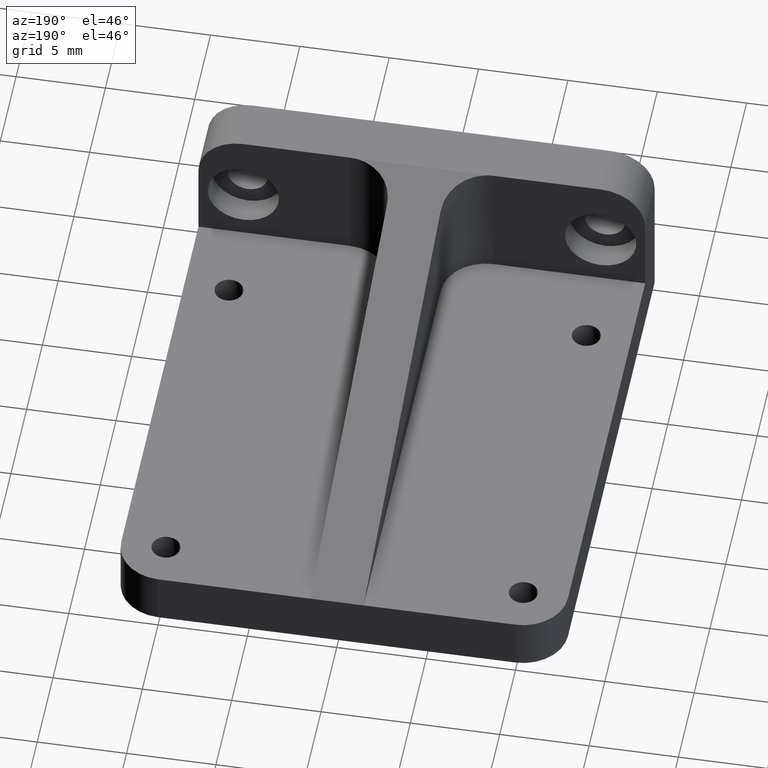
[diagram: clean part render]
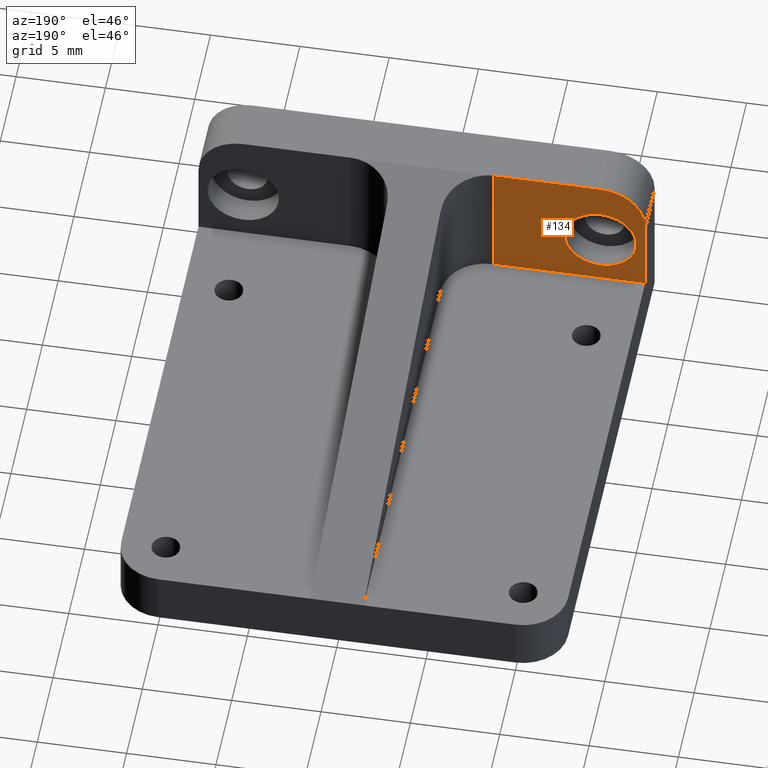
[diagram: same view with one face highlighted and labeled with its STEP entity id]
A machine part, auxiliary view. The second image highlights one B-rep face of the part: STEP entity #134.
In plain terms, the highlighted planar face has unit normal (0, -1, 0).
Its self-contained STEP definition (entity closure, byte-faithful):
#5 = DIRECTION ( 'NONE',  ( 6.938893903907227392E-16, 0.0000000000000000000, -1.000000000000000000 ) ) ;
#30 = CARTESIAN_POINT ( 'NONE',  ( -12.50000000000000000, 3.000000000000000000, -29.15475947422650904 ) ) ;
#34 = CARTESIAN_POINT ( 'NONE',  ( -12.50000000000000000, 3.000000000000000000, 7.500000000000000000 ) ) ;
#56 = LINE ( 'NONE', #650, #1044 ) ;
#86 = ORIENTED_EDGE ( 'NONE', *, *, #197, .T. ) ;
#89 = CARTESIAN_POINT ( 'NONE',  ( -9.999999999999998224, 3.000000000000000000, 7.500000000000000000 ) ) ;
#122 = EDGE_CURVE ( 'NONE', #812, #246, #369, .T. ) ;
#128 = VERTEX_POINT ( 'NONE', #1005 ) ;
#134 = ADVANCED_FACE ( 'NONE', ( #362, #235 ), #746, .F. ) ;
#137 = CARTESIAN_POINT ( 'NONE',  ( -10.00000000000000000, 3.000000000000000888, 4.000000000000000000 ) ) ;
#165 = ORIENTED_EDGE ( 'NONE', *, *, #940, .T. ) ;
#167 = AXIS2_PLACEMENT_3D ( 'NONE', #89, #938, #5 ) ;
#179 = VECTOR ( 'NONE', #417, 1000.000000000000000 ) ;
#184 = EDGE_CURVE ( 'NONE', #614, #694, #56, .T. ) ;
#197 = EDGE_CURVE ( 'NONE', #694, #128, #340, .T. ) ;
#235 = FACE_OUTER_BOUND ( 'NONE', #1074, .T. ) ;
#240 = VECTOR ( 'NONE', #857, 1000.000000000000000 ) ;
#246 = VERTEX_POINT ( 'NONE', #627 ) ;
#258 = CARTESIAN_POINT ( 'NONE',  ( -12.50000000000000000, 3.000000000000000000, -29.15475947422650904 ) ) ;
#302 = VECTOR ( 'NONE', #1224, 1000.000000000000000 ) ;
#309 = LINE ( 'NONE', #30, #179 ) ;
#326 = CIRCLE ( 'NONE', #1197, 2.000000000000000000 ) ;
#340 = LINE ( 'NONE', #725, #302 ) ;
#351 = VERTEX_POINT ( 'NONE', #34 ) ;
#362 = FACE_BOUND ( 'NONE', #1013, .T. ) ;
#369 = CIRCLE ( 'NONE', #1214, 2.000000000000000000 ) ;
#380 = VERTEX_POINT ( 'NONE', #776 ) ;
#417 = DIRECTION ( 'NONE',  ( -0.0000000000000000000, -0.0000000000000000000, 1.000000000000000000 ) ) ;
#434 = EDGE_CURVE ( 'NONE', #128, #380, #947, .T. ) ;
#459 = DIRECTION ( 'NONE',  ( 0.0000000000000000000, -0.0000000000000000000, -1.000000000000000000 ) ) ;
#478 = CARTESIAN_POINT ( 'NONE',  ( -12.50000000000000000, 3.000000000000000000, 3.000000000000002665 ) ) ;
#542 = DIRECTION ( 'NONE',  ( 0.0000000000000000000, -1.000000000000000000, 0.0000000000000000000 ) ) ;
#543 = ORIENTED_EDGE ( 'NONE', *, *, #434, .T. ) ;
#555 = DIRECTION ( 'NONE',  ( 0.0000000000000000000, 0.0000000000000000000, 1.000000000000000000 ) ) ;
#569 = ORIENTED_EDGE ( 'NONE', *, *, #941, .F. ) ;
#575 = CARTESIAN_POINT ( 'NONE',  ( -10.00000000000000000, 3.000000000000000888, 6.000000000000000000 ) ) ;
#588 = CARTESIAN_POINT ( 'NONE',  ( -9.999999999999998224, 3.000000000000000000, 10.00000000000000000 ) ) ;
#607 = CIRCLE ( 'NONE', #167, 2.500000000000000444 ) ;
#614 = VERTEX_POINT ( 'NONE', #588 ) ;
#627 = CARTESIAN_POINT ( 'NONE',  ( -10.00000000000000000, 3.000000000000000888, 8.000000000000000000 ) ) ;
#650 = CARTESIAN_POINT ( 'NONE',  ( -12.50000000000000000, 3.000000000000000000, 10.00000000000000000 ) ) ;
#672 = ORIENTED_EDGE ( 'NONE', *, *, #674, .T. ) ;
#674 = EDGE_CURVE ( 'NONE', #380, #351, #309, .T. ) ;
#693 = ORIENTED_EDGE ( 'NONE', *, *, #184, .T. ) ;
#694 = VERTEX_POINT ( 'NONE', #1182 ) ;
#725 = CARTESIAN_POINT ( 'NONE',  ( -3.999999999999999112, 3.000000000000000000, 3.000000000000002665 ) ) ;
#746 = PLANE ( 'NONE',  #951 ) ;
#776 = CARTESIAN_POINT ( 'NONE',  ( -12.50000000000000000, 3.000000000000000000, 3.000000000000002665 ) ) ;
#812 = VERTEX_POINT ( 'NONE', #137 ) ;
#846 = DIRECTION ( 'NONE',  ( 0.0000000000000000000, 0.0000000000000000000, 1.000000000000000000 ) ) ;
#857 = DIRECTION ( 'NONE',  ( -1.000000000000000000, 0.0000000000000000000, 0.0000000000000000000 ) ) ;
#938 = DIRECTION ( 'NONE',  ( -0.0000000000000000000, 1.000000000000000000, -0.0000000000000000000 ) ) ;
#940 = EDGE_CURVE ( 'NONE', #351, #614, #607, .T. ) ;
#941 = EDGE_CURVE ( 'NONE', #246, #812, #326, .T. ) ;
#947 = LINE ( 'NONE', #478, #240 ) ;
#951 = AXIS2_PLACEMENT_3D ( 'NONE', #258, #542, #459 ) ;
#1005 = CARTESIAN_POINT ( 'NONE',  ( -4.000000000000000000, 3.000000000000000000, 3.000000000000002665 ) ) ;
#1012 = CARTESIAN_POINT ( 'NONE',  ( -10.00000000000000000, 3.000000000000000888, 6.000000000000000000 ) ) ;
#1013 = EDGE_LOOP ( 'NONE', ( #569, #1043 ) ) ;
#1043 = ORIENTED_EDGE ( 'NONE', *, *, #122, .F. ) ;
#1044 = VECTOR ( 'NONE', #1207, 1000.000000000000000 ) ;
#1074 = EDGE_LOOP ( 'NONE', ( #672, #165, #693, #86, #543 ) ) ;
#1154 = DIRECTION ( 'NONE',  ( -0.0000000000000000000, 1.000000000000000000, -0.0000000000000000000 ) ) ;
#1182 = CARTESIAN_POINT ( 'NONE',  ( -4.000000000000000000, 3.000000000000000000, 10.00000000000000000 ) ) ;
#1197 = AXIS2_PLACEMENT_3D ( 'NONE', #575, #1154, #846 ) ;
#1207 = DIRECTION ( 'NONE',  ( 1.000000000000000000, 0.0000000000000000000, 0.0000000000000000000 ) ) ;
#1214 = AXIS2_PLACEMENT_3D ( 'NONE', #1012, #1218, #555 ) ;
#1218 = DIRECTION ( 'NONE',  ( -0.0000000000000000000, 1.000000000000000000, -0.0000000000000000000 ) ) ;
#1224 = DIRECTION ( 'NONE',  ( -0.0000000000000000000, -0.0000000000000000000, -1.000000000000000000 ) ) ;